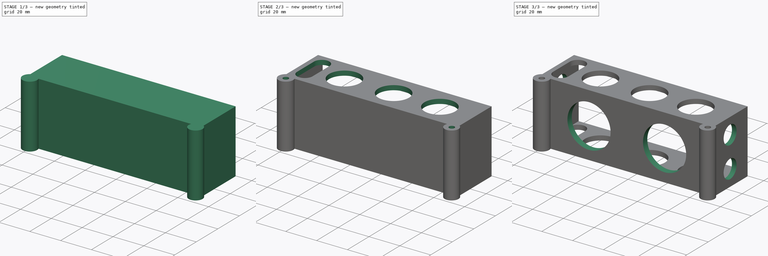
[diagram: build sequence overview — one tinted view per stage of 3, left to right]
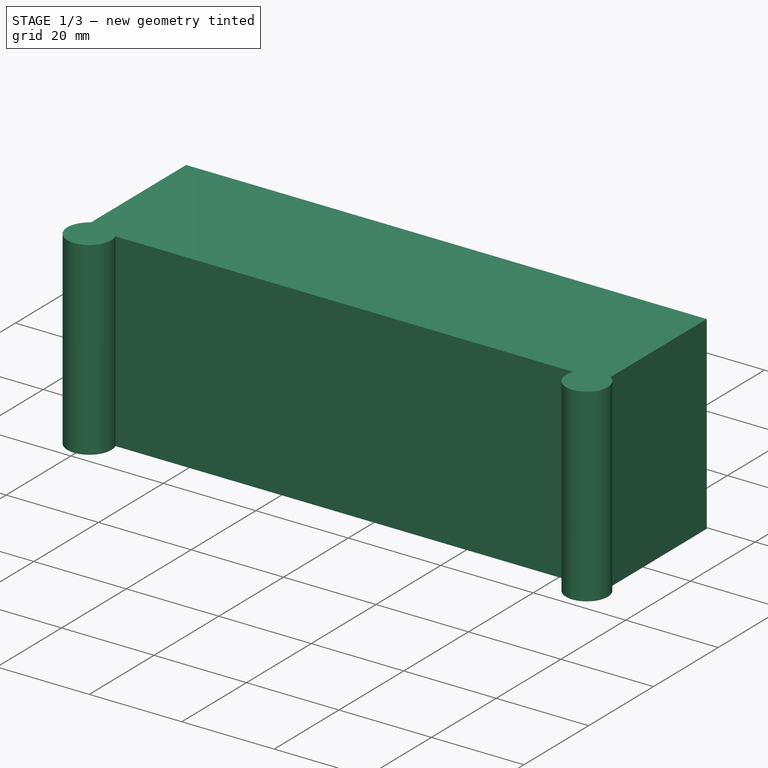
[diagram: stage 1 of 3 — iso view after this stage's code; geometry added in this stage tinted green]
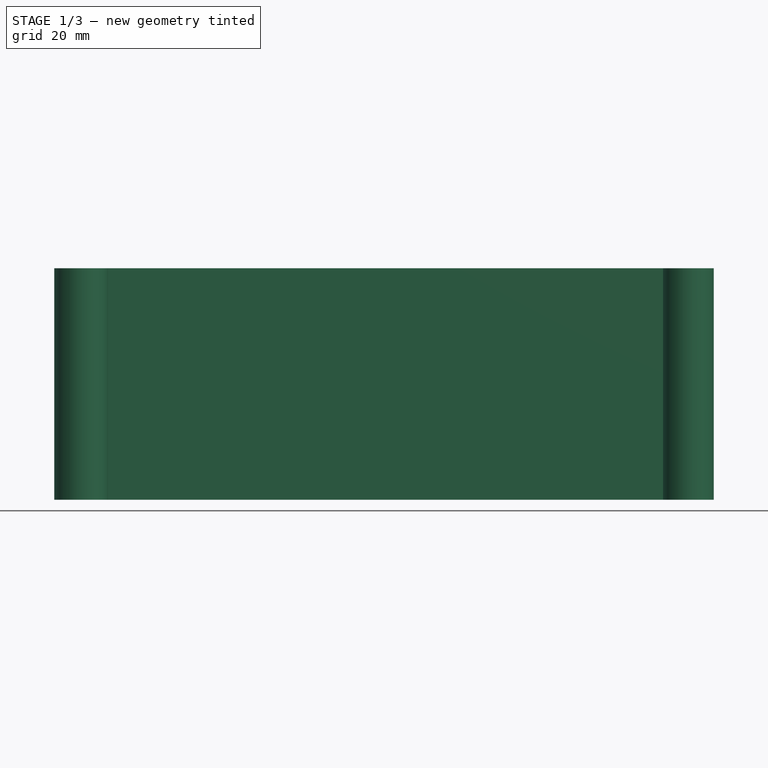
[diagram: stage 1 of 3 — front view after this stage's code; geometry added in this stage tinted green]
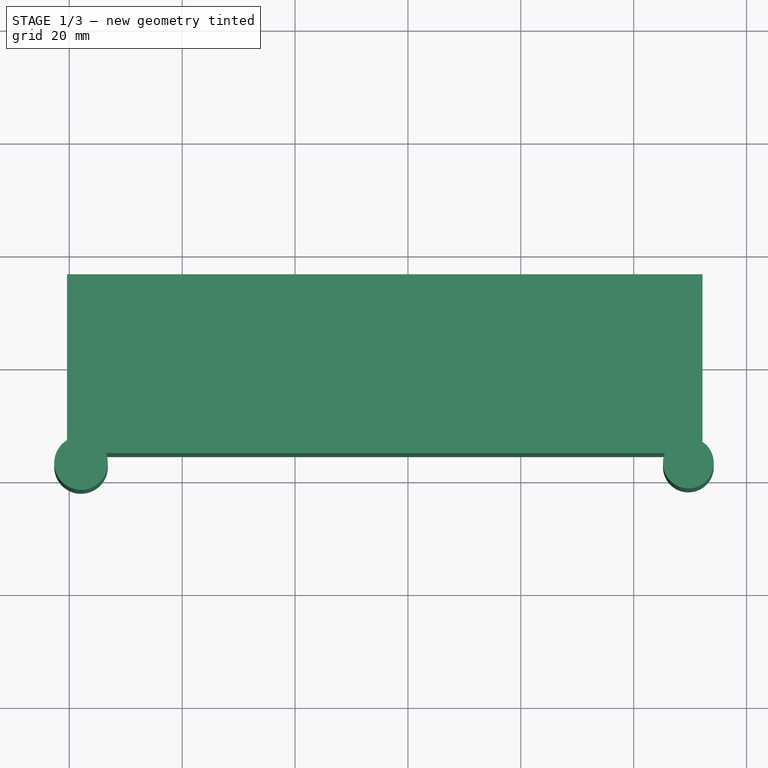
[diagram: stage 1 of 3 — top view after this stage's code; geometry added in this stage tinted green]
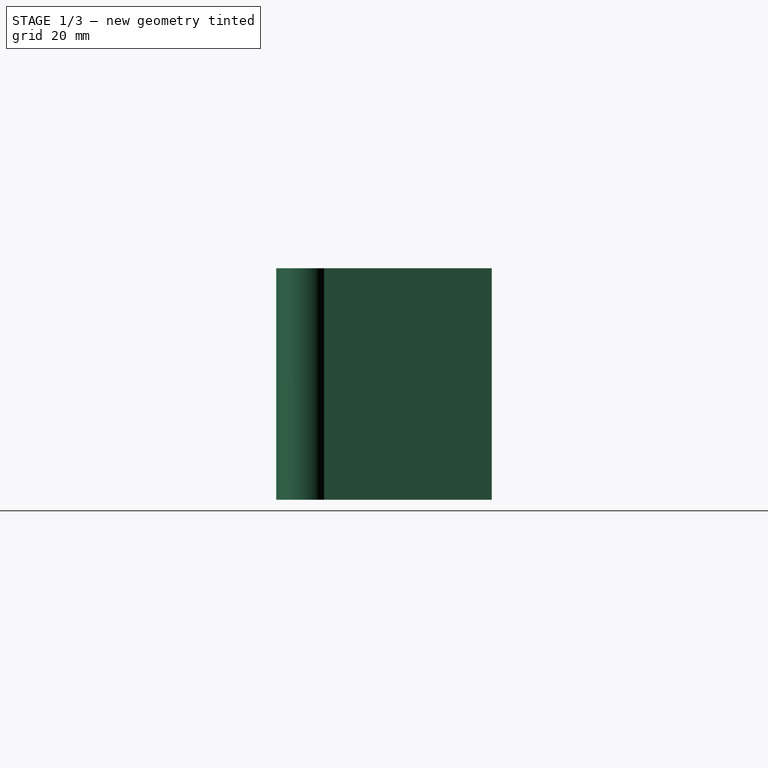
[diagram: stage 1 of 3 — right view after this stage's code; geometry added in this stage tinted green]
FCSTD DOCUMENT  (FreeCAD 0.14R3700 (Git))
Label: BattBox
License: CC-BY 3.0
LicenseURL: http://creativecommons.org/licenses/by/3.0/
objects: Sketcher::SketchObject×5, PartDesign::Pocket×4, PartDesign::Pad×1
note: 15 computed .brp shape members not serialized (recipe doc carries the construction recipe); baked Part::Feature solids carry a one-line shape summary decoded from their .brp

FEATURE [Sketcher::SketchObject] Sketch
  sketch-geometry (6):
    g0: LineSegment StartX=-60.4159 StartY=16.2 StartZ=0 EndX=52.1981 EndY=16.2 EndZ=0
    g1: ArcOfCircle CenterX=-57.9159 CenterY=-17.25 CenterZ=0 NormalX=0 NormalY=0 NormalZ=1 Radius=4.75 StartAngle=2.12506 EndAngle=6.6605
    g2: ArcOfCircle CenterX=49.6841 CenterY=-17.25 CenterZ=0 NormalX=0 NormalY=0 NormalZ=1 Radius=4.5 StartAngle=2.74217 EndAngle=7.2612
    g3: LineSegment StartX=-53.5 StartY=-15.5 StartZ=0 EndX=45.5383 EndY=-15.5 EndZ=0
    g4: LineSegment StartX=-60.4159 StartY=-13.2111 StartZ=0 EndX=-60.4159 EndY=16.2 EndZ=0
    g5: LineSegment StartX=52.1981 StartY=16.2 StartZ=0 EndX=52.1981 EndY=-13.5177 EndZ=0
  constraints (20):
    c: Radius(g1) = 4.75
    c: Radius(g2) = 4.5
    c: DistanceX(g1,g2) = 107.6
    c: DistanceX(g1,g1) = -2.5
    c: Coincident(g3,g1)
    c: Coincident(g3,g2)
    c: Coincident(g4,g0)
    c: Coincident(g4,g1)
    c: DistanceX(g0,g0) = 112.614
    c: DistanceY(g1,g1) = 1.75
    c: Horizontal(g0)
    c: Vertical(g5)
    c: DistanceY(g2,g2) = -1.75
    c: Coincident(g2,g5)
    c: Coincident(g5,g0)
    c: Horizontal(g3)
    c: DistanceY(g1,g0) = 31.7
    c: Vertical(g4)
    c: DistanceX(g1) = -53.5
    c: DistanceY(g1) = -15.5
FEATURE [PartDesign::Pad] Pad
  Length = 41
  Length2 = 20
  Sketch = -> Sketch
  Type = 0
FEATURE [Sketcher::SketchObject] Sketch001
  ExternalGeometry = -> [Pad]
  Placement = pos=(0,16.2,0) rot=(0,0.707107,0.707107;3.14159rad)
  Support = -> Pad [Face2]
  sketch-geometry (4):
    g0: LineSegment StartX=-49.1981 StartY=38 StartZ=0 EndX=57.4159 EndY=38 EndZ=0
    g1: LineSegment StartX=57.4159 StartY=38 StartZ=0 EndX=57.4159 EndY=3 EndZ=0
    g2: LineSegment StartX=57.4159 StartY=3 StartZ=0 EndX=-49.1981 EndY=3 EndZ=0
    g3: LineSegment StartX=-49.1981 StartY=3 StartZ=0 EndX=-49.1981 EndY=38 EndZ=0
  constraints (12):
    c: Coincident(g0,g1)
    c: Coincident(g1,g2)
    c: Coincident(g2,g3)
    c: Coincident(g3,g0)
    c: Horizontal(g0)
    c: Horizontal(g2)
    c: Vertical(g1)
    c: Vertical(g3)
    c: DistanceY(g-3,g0) = -3
    c: DistanceY(g2,g-3) = -3
    c: DistanceX(g0,g-3) = -3
    c: DistanceX(g0,g-4) = 3
FEATURE [PartDesign::Pocket] Pocket
  Length = 27.7
  Sketch = -> Sketch001
  Type = 0
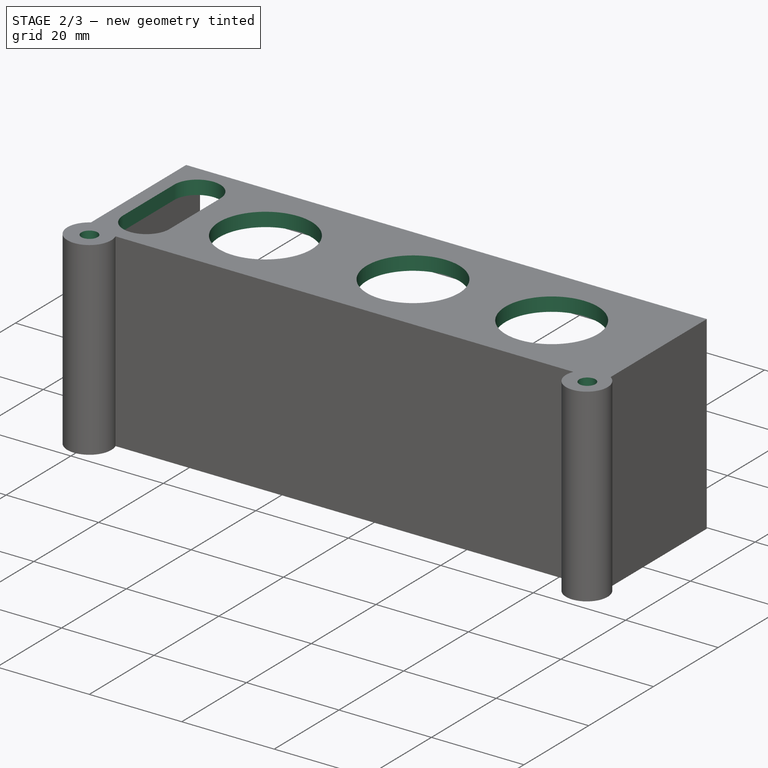
[diagram: stage 2 of 3 — iso view after this stage's code; geometry added in this stage tinted green]
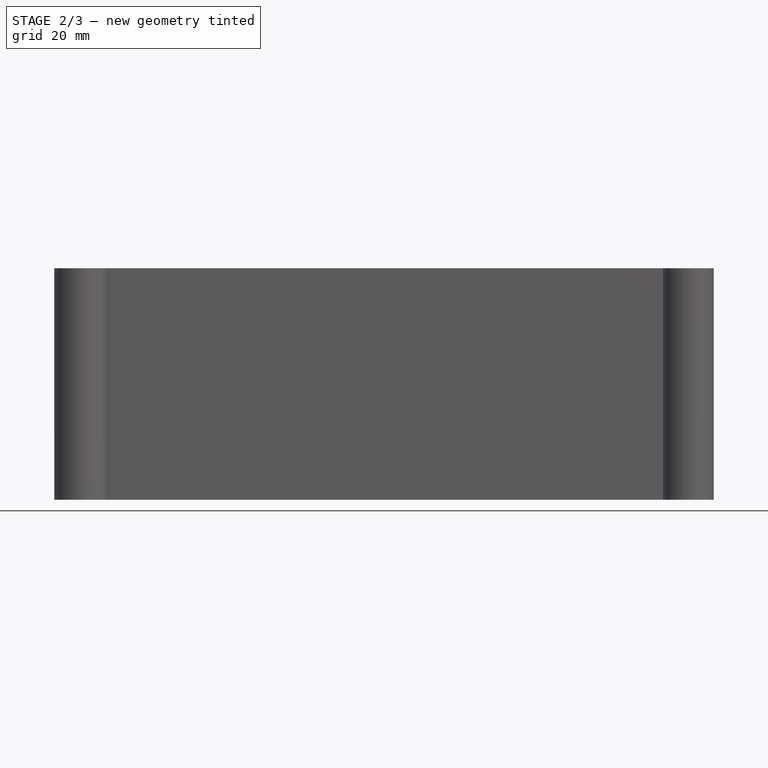
[diagram: stage 2 of 3 — front view after this stage's code; geometry added in this stage tinted green]
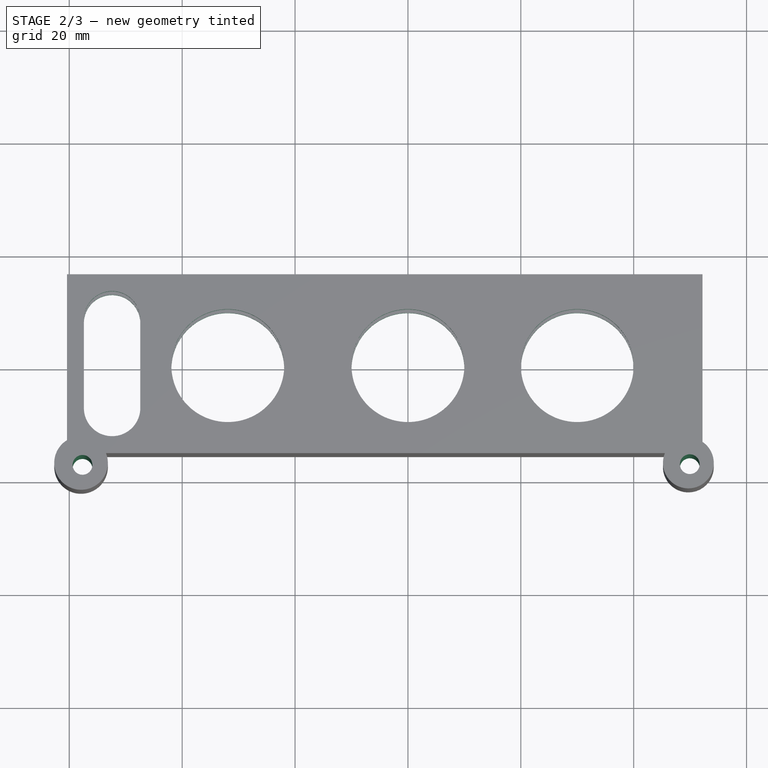
[diagram: stage 2 of 3 — top view after this stage's code; geometry added in this stage tinted green]
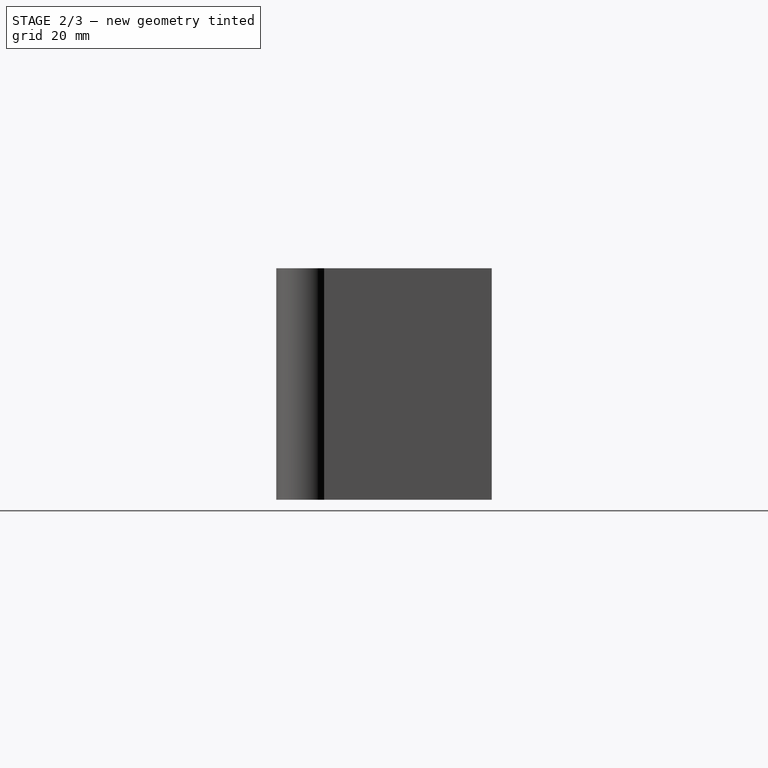
[diagram: stage 2 of 3 — right view after this stage's code; geometry added in this stage tinted green]
FEATURE [Sketcher::SketchObject] Sketch002
  ExternalGeometry = -> [Pocket]
  Placement = pos=(0,0,41) rot=(0,0,1;0rad)
  Support = -> Pocket [Face5]
  sketch-geometry (9):
    g0: ArcOfCircle CenterX=-52.4159 CenterY=-7.5 CenterZ=0 NormalX=0 NormalY=0 NormalZ=1 Radius=5 StartAngle=3.14159 EndAngle=6.28319
    g1: ArcOfCircle CenterX=-52.4159 CenterY=8.2 CenterZ=0 NormalX=0 NormalY=0 NormalZ=1 Radius=5 StartAngle=9.9009e-08 EndAngle=3.14159
    g2: LineSegment StartX=-47.4159 StartY=-7.5 StartZ=0 EndX=-47.4159 EndY=8.2 EndZ=0
    g3: LineSegment StartX=-57.4159 StartY=-7.49998 StartZ=0 EndX=-57.4159 EndY=8.20002 EndZ=0
    g4: Circle CenterX=-31.9159 CenterY=0 CenterZ=0 NormalX=0 NormalY=0 NormalZ=1 Radius=10
    g5: Circle CenterX=0 CenterY=0 CenterZ=0 NormalX=0 NormalY=0 NormalZ=1 Radius=10
    g6: Circle CenterX=30 CenterY=0 CenterZ=0 NormalX=0 NormalY=0 NormalZ=1 Radius=10
    g7: Circle CenterX=49.9387 CenterY=-17.4583 CenterZ=0 NormalX=0 NormalY=0 NormalZ=1 Radius=1.75
    g8: Circle CenterX=-57.6613 CenterY=-17.5844 CenterZ=0 NormalX=0 NormalY=0 NormalZ=1 Radius=1.75
  constraints (18):
    c: Tangent(g0,g2)
    c: Tangent(g0,g3)
    c: Tangent(g1,g2)
    c: Tangent(g1,g3)
    c: Coincident(g0,g3)
    c: Coincident(g0,g2)
    c: Coincident(g2,g1)
    c: Coincident(g3,g1)
    c: Vertical(g2)
    c: Equal(g0,g1)
    c: Radius(g0) = 5
    c: DistanceX(g0,g-3) = -3
    c: DistanceY(g0,g-4) = -8
    c: DistanceY(g1,g-3) = 8
    c: Radius(g4) = 10
    c: Radius(g7) = 1.75
    c: Radius(g8) = 1.75
    c: DistanceX(g7,g8) = -107.6
FEATURE [PartDesign::Pocket] Pocket001
  Length = 5
  Sketch = -> Sketch002
  Type = 1
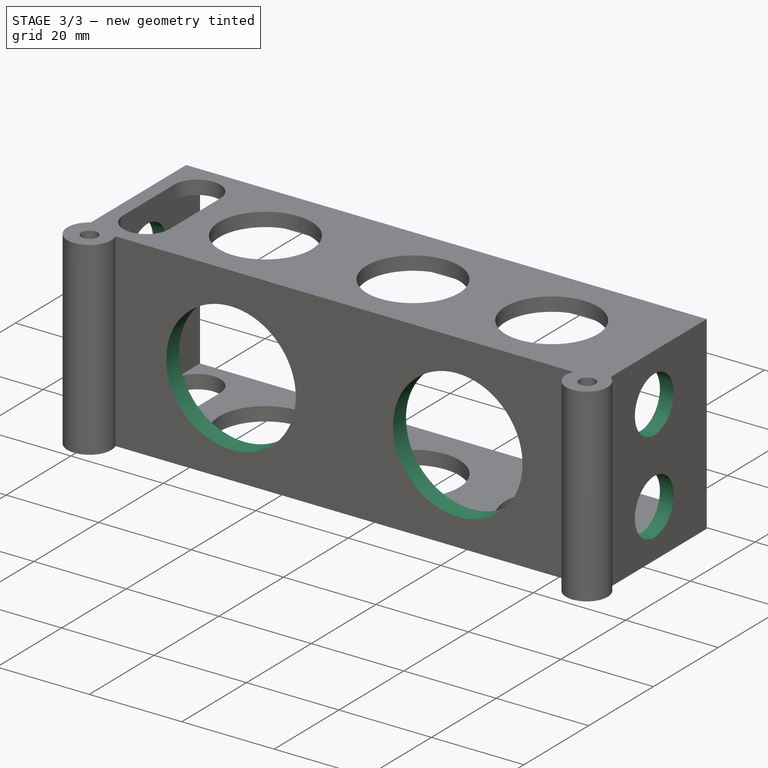
[diagram: stage 3 of 3 — iso view after this stage's code; geometry added in this stage tinted green]
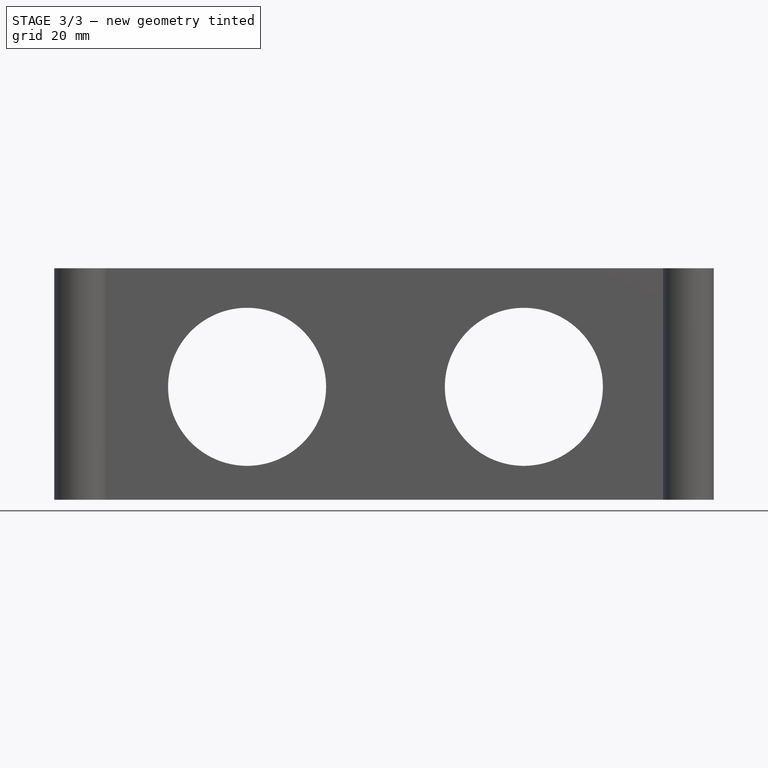
[diagram: stage 3 of 3 — front view after this stage's code; geometry added in this stage tinted green]
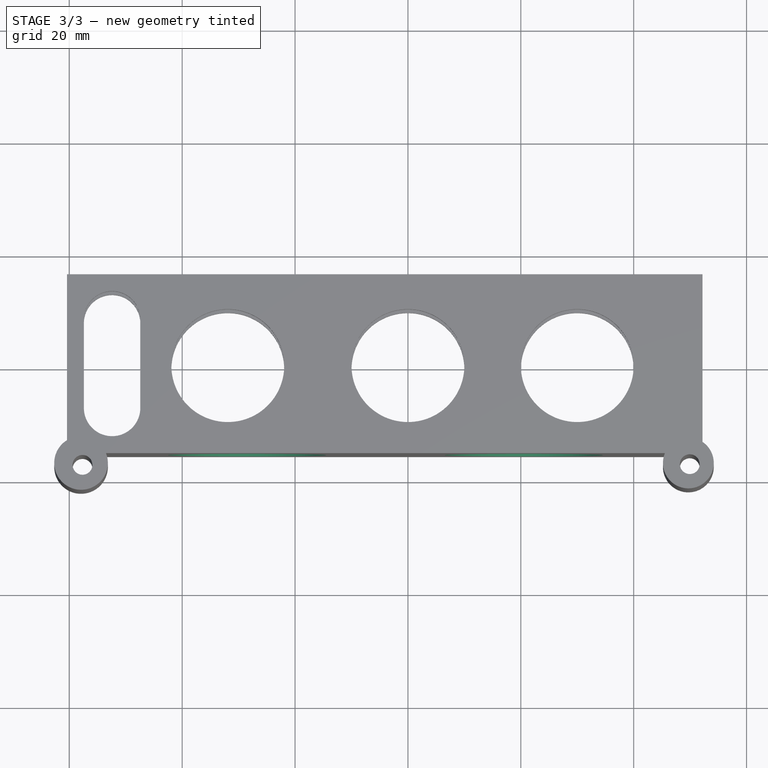
[diagram: stage 3 of 3 — top view after this stage's code; geometry added in this stage tinted green]
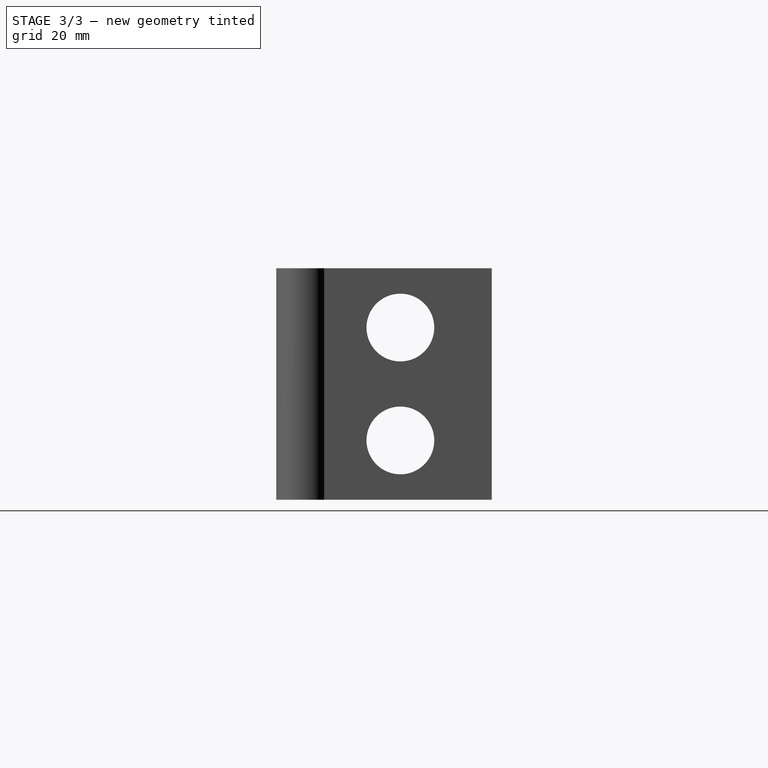
[diagram: stage 3 of 3 — right view after this stage's code; geometry added in this stage tinted green]
FEATURE [Sketcher::SketchObject] Sketch003
  Placement = pos=(0,-15.5,0) rot=(1,0,0;1.5708rad)
  Support = -> Pocket001 [Face6]
  sketch-geometry (2):
    g0: Circle CenterX=-28.5 CenterY=20 CenterZ=0 NormalX=0 NormalY=0 NormalZ=1 Radius=14
    g1: Circle CenterX=20.5383 CenterY=20 CenterZ=0 NormalX=0 NormalY=0 NormalZ=1 Radius=14
  constraints (5):
    c: Radius(g1) = 14
    c: DistanceX(g1) = 20.5383
    c: DistanceY(g1) = 20
    c: DistanceY(g0) = 20
    c: Equal(g1,g0)
FEATURE [PartDesign::Pocket] Pocket002
  Length = 5
  Sketch = -> Sketch003
  Type = 1
FEATURE [Sketcher::SketchObject] Sketch004
  Placement = pos=(52.1981,0,0) rot=(0.57735,0.57735,0.57735;2.0944rad)
  Support = -> Pocket002 [Face7]
  sketch-geometry (2):
    g0: Circle CenterX=0 CenterY=30.5 CenterZ=0 NormalX=0 NormalY=0 NormalZ=1 Radius=6
    g1: Circle CenterX=0 CenterY=10.5 CenterZ=0 NormalX=0 NormalY=0 NormalZ=1 Radius=6
  constraints (4):
    c: Radius(g0) = 6
    c: Radius(g1) = 6
    c: DistanceY(g0,g1) = -20
    c: DistanceY(g-1,g1) = 10.5
FEATURE [PartDesign::Pocket] Pocket003
  Length = 5
  Sketch = -> Sketch004
  Type = 1
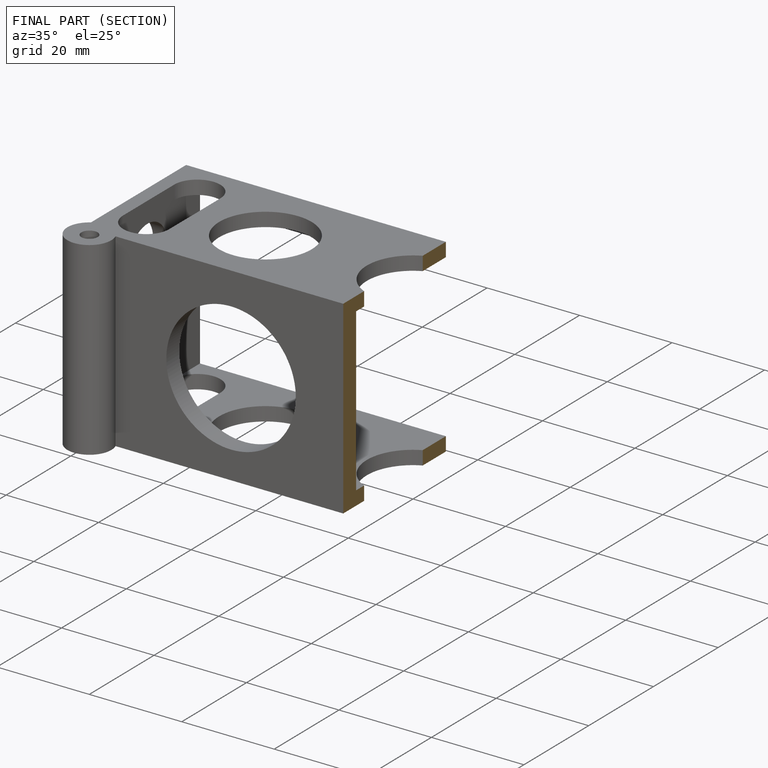
[diagram: finished part — half-section view (interior)]
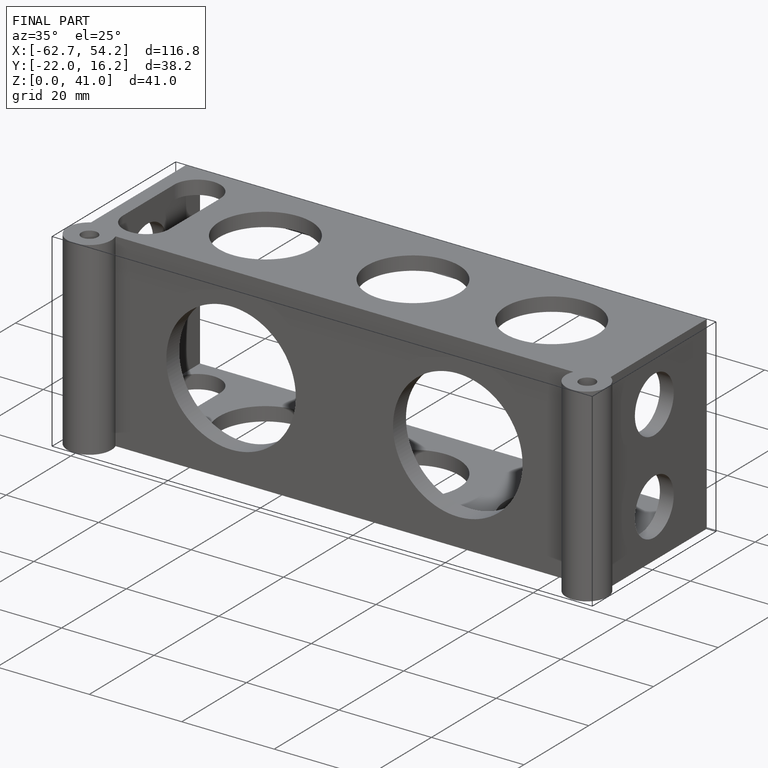
[diagram: finished part — iso view with bounding-box wireframe]
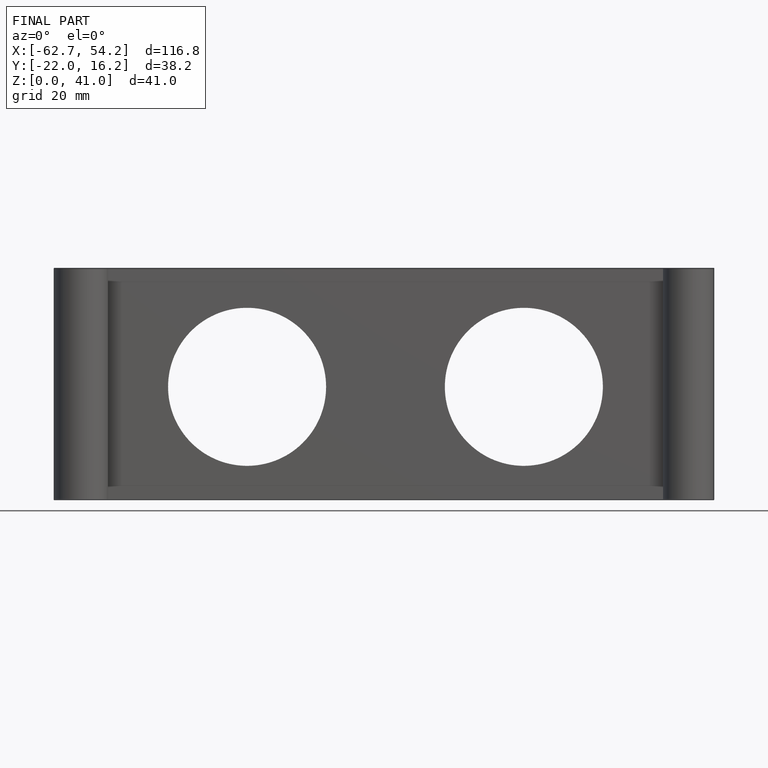
[diagram: finished part — front view with bounding-box wireframe]
